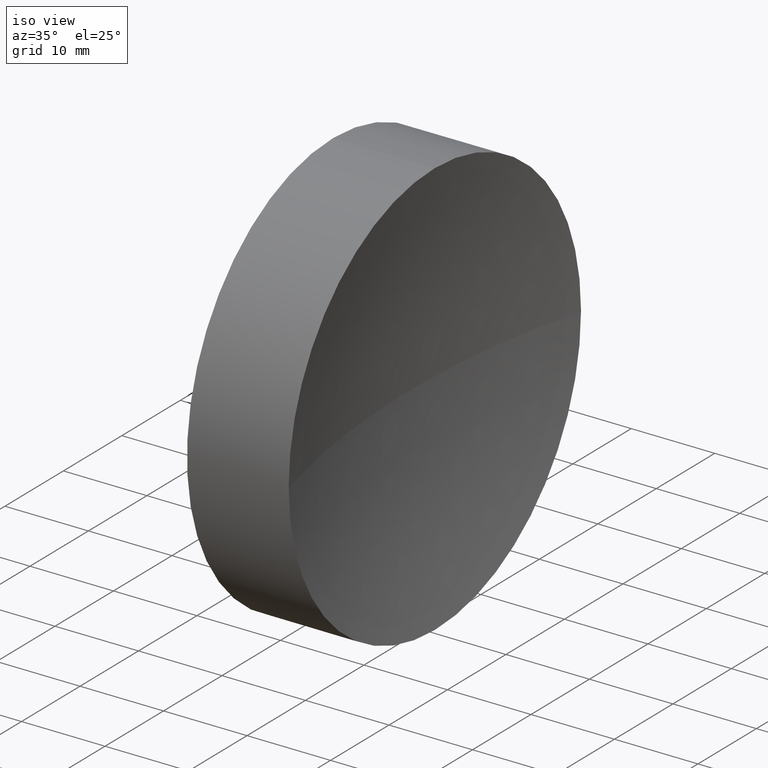
[diagram: clean part render]
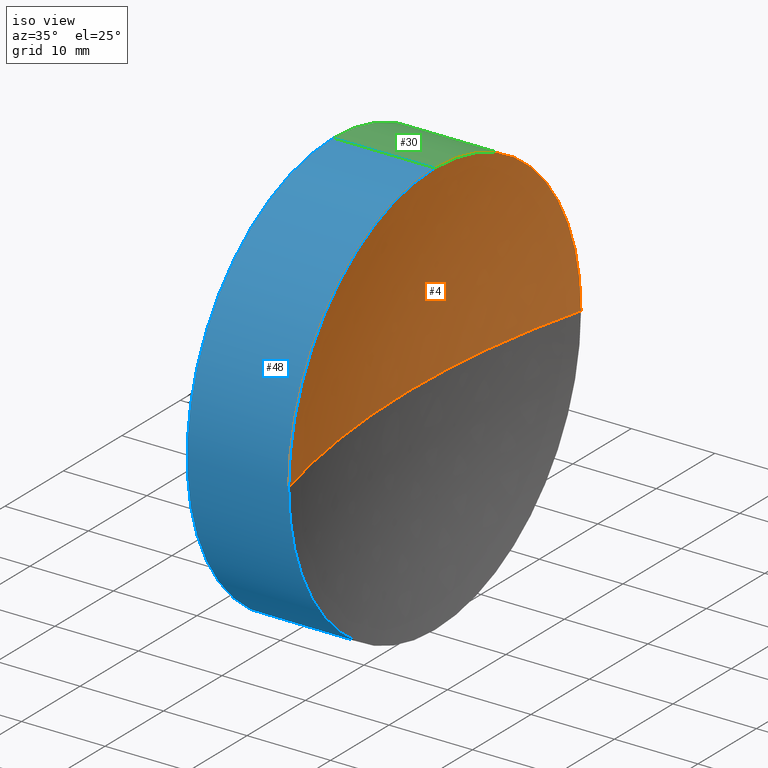
[diagram: same view with three faces highlighted in distinct colors, each labeled with its STEP entity id]
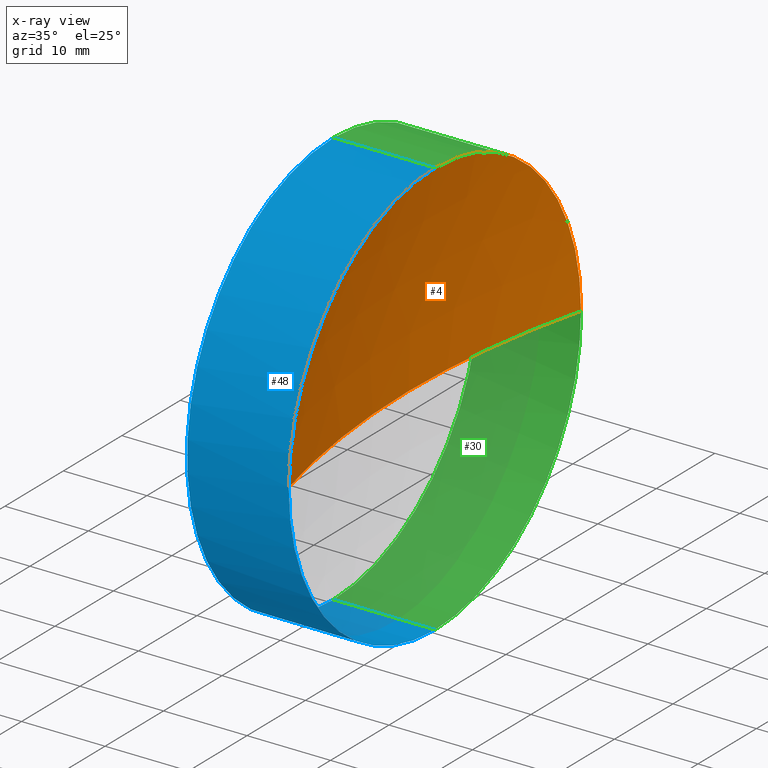
[diagram: x-ray of the same camera — body ghosted, the three highlighted faces saturated]
A machine part, iso view with three faces highlighted in distinct colors.
The next image is the same camera in x-ray (body ghosted, the three faces saturated) — at least one of them is partly hidden behind the body in this view.
Their STEP definitions:

[orange] entity #4 — the highlighted spherical surface has radius 100 mm.
#1 = VERTEX_POINT ( 'NONE', #165 ) ;
#2 = AXIS2_PLACEMENT_3D ( 'NONE', #14, #115, #178 ) ;
#4 = ADVANCED_FACE ( 'NONE', ( #23 ), #158, .F. ) ;
#5 = DIRECTION ( 'NONE',  ( -1.000000000000000000, -0.0000000000000000000, -0.0000000000000000000 ) ) ;
#7 = CARTESIAN_POINT ( 'NONE',  ( 339.1853110698390300, 138.7560422467447600, 0.0000000000000000000 ) ) ;
#14 = CARTESIAN_POINT ( 'NONE',  ( 339.1853110698390300, 138.7560422467447600, 0.0000000000000000000 ) ) ;
#15 = CARTESIAN_POINT ( 'NONE',  ( 242.3607274146536400, 138.7560422467448700, 0.0000000000000000000 ) ) ;
#16 = ORIENTED_EDGE ( 'NONE', *, *, #88, .F. ) ;
#22 = EDGE_CURVE ( 'NONE', #1, #117, #59, .T. ) ;
#23 = FACE_OUTER_BOUND ( 'NONE', #132, .T. ) ;
#25 = VERTEX_POINT ( 'NONE', #51 ) ;
#33 = DIRECTION ( 'NONE',  ( 0.0000000000000000000, 1.224646799147353200E-016, -1.000000000000000000 ) ) ;
#39 = VERTEX_POINT ( 'NONE', #94 ) ;
#42 = EDGE_CURVE ( 'NONE', #39, #25, #157, .T. ) ;
#50 = CARTESIAN_POINT ( 'NONE',  ( 242.3607274146536400, 138.7560422467448700, 0.0000000000000000000 ) ) ;
#51 = CARTESIAN_POINT ( 'NONE',  ( 239.1853110698390300, 138.7560422467447600, 0.0000000000000000000 ) ) ;
#59 = CIRCLE ( 'NONE', #103, 24.99999999999999300 ) ;
#64 = DIRECTION ( 'NONE',  ( 0.0000000000000000000, 1.000000000000000000, 0.0000000000000000000 ) ) ;
#66 = DIRECTION ( 'NONE',  ( 0.0000000000000000000, 0.0000000000000000000, 1.000000000000000000 ) ) ;
#78 = DIRECTION ( 'NONE',  ( 0.0000000000000000000, 0.0000000000000000000, -1.000000000000000000 ) ) ;
#79 = CIRCLE ( 'NONE', #2, 99.99999999999997200 ) ;
#88 = EDGE_CURVE ( 'NONE', #117, #25, #79, .T. ) ;
#93 = CARTESIAN_POINT ( 'NONE',  ( 339.1853110698390300, 138.7560422467447600, 0.0000000000000000000 ) ) ;
#94 = CARTESIAN_POINT ( 'NONE',  ( 242.3607274146536400, 113.7560422467447700, -3.061616997868382300E-015 ) ) ;
#100 = ORIENTED_EDGE ( 'NONE', *, *, #22, .F. ) ;
#103 = AXIS2_PLACEMENT_3D ( 'NONE', #50, #5, #66 ) ;
#115 = DIRECTION ( 'NONE',  ( 0.0000000000000000000, 0.0000000000000000000, 1.000000000000000000 ) ) ;
#116 = AXIS2_PLACEMENT_3D ( 'NONE', #93, #78, #64 ) ;
#117 = VERTEX_POINT ( 'NONE', #142 ) ;
#122 = AXIS2_PLACEMENT_3D ( 'NONE', #15, #154, #168 ) ;
#132 = EDGE_LOOP ( 'NONE', ( #171, #136, #16, #100 ) ) ;
#136 = ORIENTED_EDGE ( 'NONE', *, *, #42, .T. ) ;
#137 = DIRECTION ( 'NONE',  ( 0.0000000000000000000, 1.000000000000000000, 1.224646799147353200E-016 ) ) ;
#140 = AXIS2_PLACEMENT_3D ( 'NONE', #7, #33, #137 ) ;
#142 = CARTESIAN_POINT ( 'NONE',  ( 242.3607274146536400, 163.7560422467448700, 0.0000000000000000000 ) ) ;
#147 = CIRCLE ( 'NONE', #122, 24.99999999999999300 ) ;
#154 = DIRECTION ( 'NONE',  ( -1.000000000000000000, -0.0000000000000000000, -0.0000000000000000000 ) ) ;
#157 = CIRCLE ( 'NONE', #140, 99.99999999999997200 ) ;
#158 = SPHERICAL_SURFACE ( 'NONE', #116, 99.99999999999997200 ) ;
#160 = EDGE_CURVE ( 'NONE', #39, #1, #147, .T. ) ;
#165 = CARTESIAN_POINT ( 'NONE',  ( 242.3607274146536400, 138.7560422467448700, 24.99999999999999300 ) ) ;
#168 = DIRECTION ( 'NONE',  ( 0.0000000000000000000, 0.0000000000000000000, 1.000000000000000000 ) ) ;
#171 = ORIENTED_EDGE ( 'NONE', *, *, #160, .F. ) ;
#178 = DIRECTION ( 'NONE',  ( 1.000000000000000000, 0.0000000000000000000, 0.0000000000000000000 ) ) ;

[blue] entity #48 — the highlighted cylindrical surface (partial cylindrical patch) has radius 25 mm, axis along (-1, -0, -0).
#1 = VERTEX_POINT ( 'NONE', #165 ) ;
#8 = CIRCLE ( 'NONE', #185, 24.99999999999999300 ) ;
#9 = DIRECTION ( 'NONE',  ( -1.000000000000000000, -0.0000000000000000000, -0.0000000000000000000 ) ) ;
#12 = LINE ( 'NONE', #110, #186 ) ;
#15 = CARTESIAN_POINT ( 'NONE',  ( 242.3607274146536400, 138.7560422467448700, 0.0000000000000000000 ) ) ;
#17 = AXIS2_PLACEMENT_3D ( 'NONE', #143, #56, #131 ) ;
#18 = ORIENTED_EDGE ( 'NONE', *, *, #69, .T. ) ;
#19 = EDGE_CURVE ( 'NONE', #1, #114, #12, .T. ) ;
#27 = CARTESIAN_POINT ( 'NONE',  ( 242.3607274146536400, 138.7560422467448700, 0.0000000000000000000 ) ) ;
#31 = CARTESIAN_POINT ( 'NONE',  ( 217.9702860043302100, 138.7560422467448700, 0.0000000000000000000 ) ) ;
#38 = DIRECTION ( 'NONE',  ( 0.0000000000000000000, 0.0000000000000000000, 1.000000000000000000 ) ) ;
#39 = VERTEX_POINT ( 'NONE', #94 ) ;
#41 = LINE ( 'NONE', #130, #89 ) ;
#47 = EDGE_LOOP ( 'NONE', ( #119, #18, #53, #60, #161 ) ) ;
#48 = ADVANCED_FACE ( 'NONE', ( #83 ), #144, .T. ) ;
#53 = ORIENTED_EDGE ( 'NONE', *, *, #160, .T. ) ;
#56 = DIRECTION ( 'NONE',  ( -1.000000000000000000, -0.0000000000000000000, -0.0000000000000000000 ) ) ;
#60 = ORIENTED_EDGE ( 'NONE', *, *, #19, .T. ) ;
#69 = EDGE_CURVE ( 'NONE', #123, #39, #8, .T. ) ;
#83 = FACE_OUTER_BOUND ( 'NONE', #47, .T. ) ;
#84 = DIRECTION ( 'NONE',  ( -1.000000000000000000, -0.0000000000000000000, -0.0000000000000000000 ) ) ;
#89 = VECTOR ( 'NONE', #84, 1000.000000000000000 ) ;
#94 = CARTESIAN_POINT ( 'NONE',  ( 242.3607274146536400, 113.7560422467447700, -3.061616997868382300E-015 ) ) ;
#99 = CARTESIAN_POINT ( 'NONE',  ( 242.3607274146536400, 138.7560422467448700, -24.99999999999999300 ) ) ;
#106 = EDGE_CURVE ( 'NONE', #123, #153, #41, .T. ) ;
#110 = CARTESIAN_POINT ( 'NONE',  ( 217.9702860043302100, 138.7560422467448700, 24.99999999999999300 ) ) ;
#114 = VERTEX_POINT ( 'NONE', #126 ) ;
#119 = ORIENTED_EDGE ( 'NONE', *, *, #106, .F. ) ;
#121 = EDGE_CURVE ( 'NONE', #153, #114, #124, .T. ) ;
#122 = AXIS2_PLACEMENT_3D ( 'NONE', #15, #154, #168 ) ;
#123 = VERTEX_POINT ( 'NONE', #99 ) ;
#124 = CIRCLE ( 'NONE', #17, 24.99999999999999300 ) ;
#125 = AXIS2_PLACEMENT_3D ( 'NONE', #31, #9, #163 ) ;
#126 = CARTESIAN_POINT ( 'NONE',  ( 230.1853110698390300, 138.7560422467448700, 24.99999999999999300 ) ) ;
#130 = CARTESIAN_POINT ( 'NONE',  ( 217.9702860043302100, 138.7560422467448700, -24.99999999999999300 ) ) ;
#131 = DIRECTION ( 'NONE',  ( 0.0000000000000000000, 0.0000000000000000000, 1.000000000000000000 ) ) ;
#138 = DIRECTION ( 'NONE',  ( -1.000000000000000000, -0.0000000000000000000, -0.0000000000000000000 ) ) ;
#143 = CARTESIAN_POINT ( 'NONE',  ( 230.1853110698390300, 138.7560422467448700, 0.0000000000000000000 ) ) ;
#144 = CYLINDRICAL_SURFACE ( 'NONE', #125, 24.99999999999999300 ) ;
#147 = CIRCLE ( 'NONE', #122, 24.99999999999999300 ) ;
#151 = DIRECTION ( 'NONE',  ( -1.000000000000000000, -0.0000000000000000000, -0.0000000000000000000 ) ) ;
#153 = VERTEX_POINT ( 'NONE', #184 ) ;
#154 = DIRECTION ( 'NONE',  ( -1.000000000000000000, -0.0000000000000000000, -0.0000000000000000000 ) ) ;
#160 = EDGE_CURVE ( 'NONE', #39, #1, #147, .T. ) ;
#161 = ORIENTED_EDGE ( 'NONE', *, *, #121, .F. ) ;
#163 = DIRECTION ( 'NONE',  ( 0.0000000000000000000, 0.0000000000000000000, 1.000000000000000000 ) ) ;
#165 = CARTESIAN_POINT ( 'NONE',  ( 242.3607274146536400, 138.7560422467448700, 24.99999999999999300 ) ) ;
#168 = DIRECTION ( 'NONE',  ( 0.0000000000000000000, 0.0000000000000000000, 1.000000000000000000 ) ) ;
#184 = CARTESIAN_POINT ( 'NONE',  ( 230.1853110698390300, 138.7560422467448700, -24.99999999999999300 ) ) ;
#185 = AXIS2_PLACEMENT_3D ( 'NONE', #27, #151, #38 ) ;
#186 = VECTOR ( 'NONE', #138, 1000.000000000000000 ) ;

[green] entity #30 — the highlighted cylindrical surface (partial cylindrical patch) has radius 25 mm, axis along (-1, -0, -0).
#1 = VERTEX_POINT ( 'NONE', #165 ) ;
#3 = ORIENTED_EDGE ( 'NONE', *, *, #19, .F. ) ;
#5 = DIRECTION ( 'NONE',  ( -1.000000000000000000, -0.0000000000000000000, -0.0000000000000000000 ) ) ;
#6 = EDGE_CURVE ( 'NONE', #117, #123, #87, .T. ) ;
#12 = LINE ( 'NONE', #110, #186 ) ;
#19 = EDGE_CURVE ( 'NONE', #1, #114, #12, .T. ) ;
#22 = EDGE_CURVE ( 'NONE', #1, #117, #59, .T. ) ;
#26 = CARTESIAN_POINT ( 'NONE',  ( 242.3607274146536400, 138.7560422467448700, 0.0000000000000000000 ) ) ;
#30 = ADVANCED_FACE ( 'NONE', ( #75 ), #72, .T. ) ;
#41 = LINE ( 'NONE', #130, #89 ) ;
#46 = AXIS2_PLACEMENT_3D ( 'NONE', #170, #68, #55 ) ;
#50 = CARTESIAN_POINT ( 'NONE',  ( 242.3607274146536400, 138.7560422467448700, 0.0000000000000000000 ) ) ;
#55 = DIRECTION ( 'NONE',  ( 0.0000000000000000000, 0.0000000000000000000, 1.000000000000000000 ) ) ;
#57 = ORIENTED_EDGE ( 'NONE', *, *, #106, .T. ) ;
#59 = CIRCLE ( 'NONE', #103, 24.99999999999999300 ) ;
#65 = DIRECTION ( 'NONE',  ( 0.0000000000000000000, 0.0000000000000000000, 1.000000000000000000 ) ) ;
#66 = DIRECTION ( 'NONE',  ( 0.0000000000000000000, 0.0000000000000000000, 1.000000000000000000 ) ) ;
#67 = DIRECTION ( 'NONE',  ( -1.000000000000000000, -0.0000000000000000000, -0.0000000000000000000 ) ) ;
#68 = DIRECTION ( 'NONE',  ( -1.000000000000000000, -0.0000000000000000000, -0.0000000000000000000 ) ) ;
#72 = CYLINDRICAL_SURFACE ( 'NONE', #118, 24.99999999999999300 ) ;
#74 = AXIS2_PLACEMENT_3D ( 'NONE', #26, #67, #65 ) ;
#75 = FACE_OUTER_BOUND ( 'NONE', #92, .T. ) ;
#76 = ORIENTED_EDGE ( 'NONE', *, *, #6, .T. ) ;
#84 = DIRECTION ( 'NONE',  ( -1.000000000000000000, -0.0000000000000000000, -0.0000000000000000000 ) ) ;
#86 = EDGE_CURVE ( 'NONE', #114, #153, #105, .T. ) ;
#87 = CIRCLE ( 'NONE', #74, 24.99999999999999300 ) ;
#89 = VECTOR ( 'NONE', #84, 1000.000000000000000 ) ;
#92 = EDGE_LOOP ( 'NONE', ( #76, #57, #108, #3, #146 ) ) ;
#99 = CARTESIAN_POINT ( 'NONE',  ( 242.3607274146536400, 138.7560422467448700, -24.99999999999999300 ) ) ;
#103 = AXIS2_PLACEMENT_3D ( 'NONE', #50, #5, #66 ) ;
#105 = CIRCLE ( 'NONE', #46, 24.99999999999999300 ) ;
#106 = EDGE_CURVE ( 'NONE', #123, #153, #41, .T. ) ;
#108 = ORIENTED_EDGE ( 'NONE', *, *, #86, .F. ) ;
#110 = CARTESIAN_POINT ( 'NONE',  ( 217.9702860043302100, 138.7560422467448700, 24.99999999999999300 ) ) ;
#114 = VERTEX_POINT ( 'NONE', #126 ) ;
#117 = VERTEX_POINT ( 'NONE', #142 ) ;
#118 = AXIS2_PLACEMENT_3D ( 'NONE', #177, #175, #139 ) ;
#123 = VERTEX_POINT ( 'NONE', #99 ) ;
#126 = CARTESIAN_POINT ( 'NONE',  ( 230.1853110698390300, 138.7560422467448700, 24.99999999999999300 ) ) ;
#130 = CARTESIAN_POINT ( 'NONE',  ( 217.9702860043302100, 138.7560422467448700, -24.99999999999999300 ) ) ;
#138 = DIRECTION ( 'NONE',  ( -1.000000000000000000, -0.0000000000000000000, -0.0000000000000000000 ) ) ;
#139 = DIRECTION ( 'NONE',  ( 0.0000000000000000000, 0.0000000000000000000, 1.000000000000000000 ) ) ;
#142 = CARTESIAN_POINT ( 'NONE',  ( 242.3607274146536400, 163.7560422467448700, 0.0000000000000000000 ) ) ;
#146 = ORIENTED_EDGE ( 'NONE', *, *, #22, .T. ) ;
#153 = VERTEX_POINT ( 'NONE', #184 ) ;
#165 = CARTESIAN_POINT ( 'NONE',  ( 242.3607274146536400, 138.7560422467448700, 24.99999999999999300 ) ) ;
#170 = CARTESIAN_POINT ( 'NONE',  ( 230.1853110698390300, 138.7560422467448700, 0.0000000000000000000 ) ) ;
#175 = DIRECTION ( 'NONE',  ( -1.000000000000000000, -0.0000000000000000000, -0.0000000000000000000 ) ) ;
#177 = CARTESIAN_POINT ( 'NONE',  ( 217.9702860043302100, 138.7560422467448700, 0.0000000000000000000 ) ) ;
#184 = CARTESIAN_POINT ( 'NONE',  ( 230.1853110698390300, 138.7560422467448700, -24.99999999999999300 ) ) ;
#186 = VECTOR ( 'NONE', #138, 1000.000000000000000 ) ;